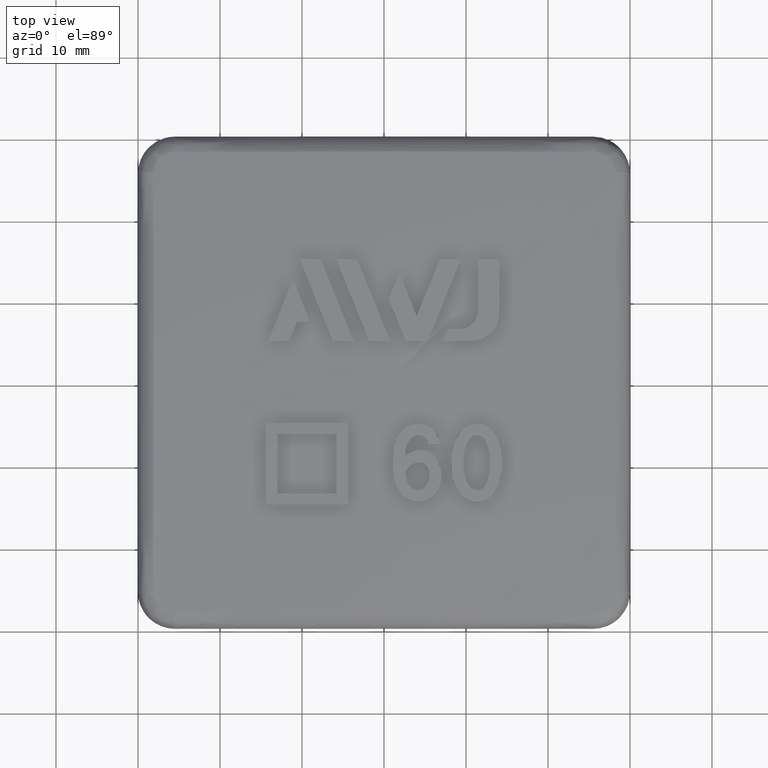
[diagram: clean part render]
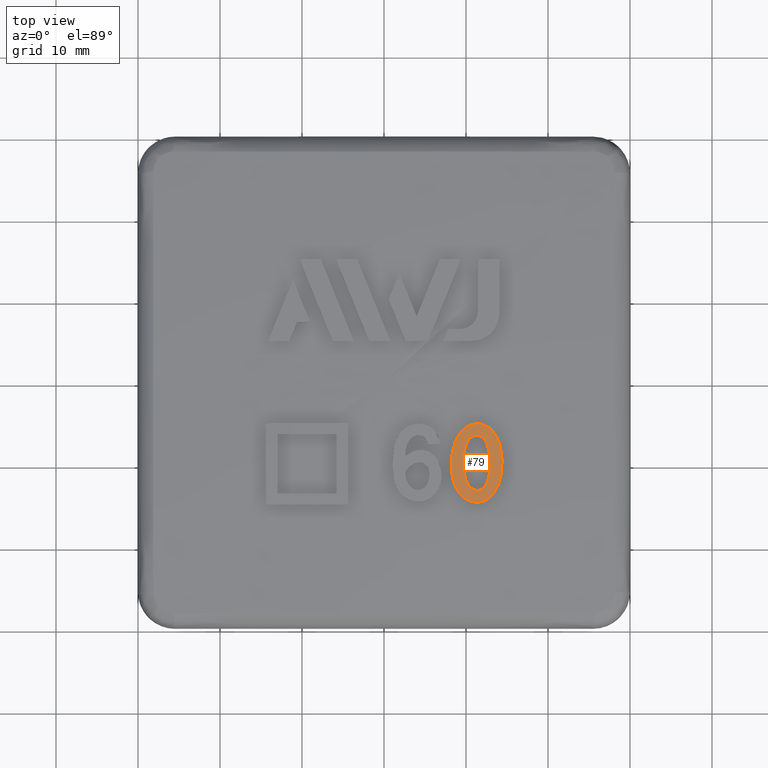
[diagram: same view with one face highlighted and labeled with its STEP entity id]
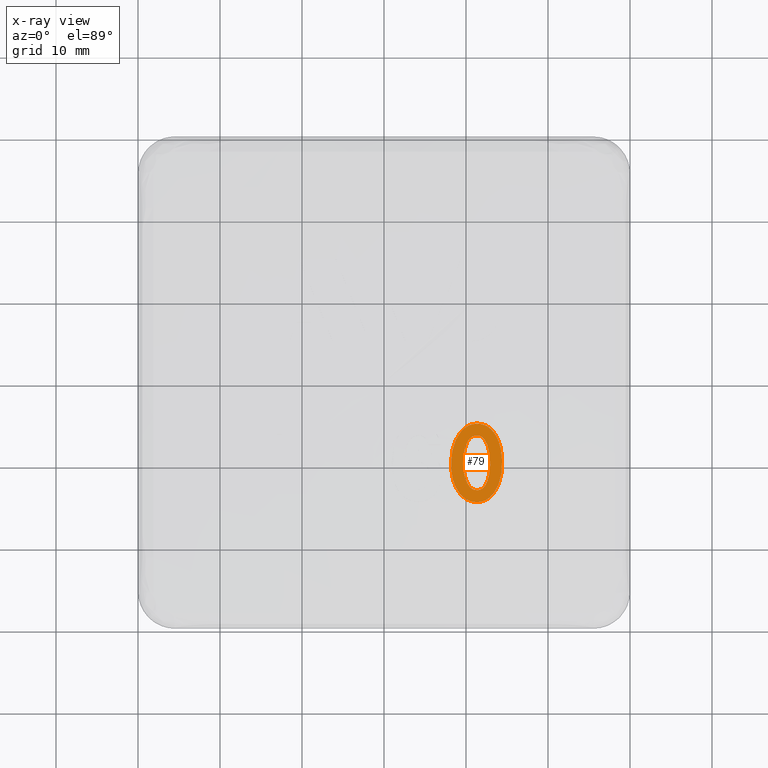
[diagram: x-ray of the same camera — body ghosted, the highlighted face saturated]
A machine part, top view. The second image highlights one B-rep face of the part: STEP entity #79.
The next image is the same camera in x-ray: the body ghosted, the highlighted face saturated — about 0% of this face is hidden behind the body in this view.
In plain terms, the highlighted face is a freeform B-spline surface patch.
Its self-contained STEP definition (entity closure, byte-faithful):
#79 = ADVANCED_FACE( '', ( #368, #369 ), #370, .T. );
#368 = FACE_OUTER_BOUND( '', #975, .T. );
#369 = FACE_BOUND( '', #976, .T. );
#370 = ( B_SPLINE_SURFACE( 3, 3, ( ( #978, #979, #980, #981 ), ( #982, #983, #984, #985 ), ( #986, #987, #988, #989 ), ( #990, #991, #992, #993 ) ), .UNSPECIFIED., .F., .F., .F. )B_SPLINE_SURFACE_WITH_KNOTS( ( 4, 4 ), ( 4, 4 ), ( 0.591101138315050, 1.17247002851752 ), ( 1.52448612272266, 1.54462714128179 ), .UNSPECIFIED. )RATIONAL_B_SPLINE_SURFACE( ( ( 1.00000000000000, 0.972031954984282, 0.972031954984282, 1.00000000000000 ), ( 0.999966195233311, 0.971999095670829, 0.971999095670829, 0.999966195233311 ), ( 0.999966195233311, 0.971999095670829, 0.971999095670829, 0.999966195233311 ), ( 1.00000000000000, 0.972031954984282, 0.972031954984282, 1.00000000000000 ) ) )BOUNDED_SURFACE(  )REPRESENTATION_ITEM( '' )GEOMETRIC_REPRESENTATION_ITEM(  )SURFACE(  ) );
#975 = EDGE_LOOP( '', ( #3679 ) );
#976 = EDGE_LOOP( '', ( #3680 ) );
#978 = CARTESIAN_POINT( '', ( 6.17741690337177, -9.20420489254490, 27.3633296025788 ) );
#979 = CARTESIAN_POINT( '', ( 7.98668456355546, -7.98991199519802, 27.3633296025788 ) );
#980 = CARTESIAN_POINT( '', ( 9.37202361755281, -6.30801056758600, 27.3633296025788 ) );
#981 = CARTESIAN_POINT( '', ( 10.2171983902911, -4.29961909422719, 27.3633296025788 ) );
#982 = CARTESIAN_POINT( '', ( 7.67534646140181, -11.4360844600681, 27.2929720584861 ) );
#983 = CARTESIAN_POINT( '', ( 9.92333398604823, -9.92734402073176, 27.2929720584861 ) );
#984 = CARTESIAN_POINT( '', ( 11.6445966711256, -7.83760710111371, 27.2929720584861 ) );
#985 = CARTESIAN_POINT( '', ( 12.6947134598537, -5.34221126993057, 27.2929720584861 ) );
#986 = CARTESIAN_POINT( '', ( 9.17280522032807, -13.6672625480761, 27.1955495063416 ) );
#987 = CARTESIAN_POINT( '', ( 11.8593747198296, -11.8641671115820, 27.1955495063416 ) );
#988 = CARTESIAN_POINT( '', ( 13.9164554552249, -9.36672288261053, 27.1955495063416 ) );
#989 = CARTESIAN_POINT( '', ( 15.1714498466884, -6.38447575902192, 27.1955495063416 ) );
#990 = CARTESIAN_POINT( '', ( 10.6696413164186, -15.8975128832047, 27.0710718261853 ) );
#991 = CARTESIAN_POINT( '', ( 13.7946104226836, -13.8001848461907, 27.0710718261853 ) );
#992 = CARTESIAN_POINT( '', ( 16.1873695708820, -10.8952028378698, 27.0710718261853 ) );
#993 = CARTESIAN_POINT( '', ( 17.6471563743082, -7.42630686097760, 27.0710718261853 ) );
#3679 = ORIENTED_EDGE( '', *, *, #5967, .F. );
#3680 = ORIENTED_EDGE( '', *, *, #5968, .F. );
#5967 = EDGE_CURVE( '', #6727, #6727, #6728, .T. );
#5968 = EDGE_CURVE( '', #6729, #6729, #6730, .T. );
#6727 = VERTEX_POINT( '', #8174 );
#6728 = B_SPLINE_CURVE_WITH_KNOTS( '', 3, ( #8175, #8176, #8177, #8178, #8179, #8180, #8181, #8182, #8183, #8184, #8185, #8186, #8187, #8188, #8189, #8190, #8191, #8192, #8193, #8194, #8195, #8196, #8197, #8198, #8199, #8200, #8201, #8202, #8203, #8204, #8205, #8206, #8207, #8208, #8209, #8210, #8211, #8212, #8213, #8214, #8215, #8216, #8217, #8218, #8219, #8220, #8221, #8222, #8223, #8224, #8225, #8226, #8227, #8228, #8229, #8230, #8231, #8232, #8233, #8234, #8235, #8236, #8237, #8238, #8239, #8240, #8241, #8242 ), .UNSPECIFIED., .T., .F., ( 2, 2, 2, 2, 2, 2, 2, 2, 2, 2, 2, 2, 2, 2, 2, 2, 2, 2, 2, 2, 2, 2, 2, 2, 2, 2, 2, 2, 2, 2, 2, 2, 2, 2, 2, 2 ), ( -0.000789168950976997, 0.000000000000000, 0.000789168950976986, 0.00157833790195397, 0.00315667580390795, 0.00473501370586193, 0.00552418265683892, 0.00631335160781591, 0.00710252055879290, 0.00789168950976989, 0.00828627398525839, 0.00868085846074688, 0.00907544293623538, 0.00947002741172388, 0.00986461188721237, 0.0102591963627009, 0.0106537808381894, 0.0110483653136779, 0.0118375342646549, 0.0126267032156318, 0.0134158721666088, 0.0142050411175858, 0.0149942100685628, 0.0157833790195398, 0.0165725479705168, 0.0173617169214938, 0.0189400548234478, 0.0197292237744248, 0.0205183927254018, 0.0213075616763788, 0.0220967306273558, 0.0228858995783328, 0.0236750685293097, 0.0244642374802867, 0.0252534064312637, 0.0260425753822407 ), .UNSPECIFIED. );
#6729 = VERTEX_POINT( '', #8243 );
#6730 = B_SPLINE_CURVE_WITH_KNOTS( '', 3, ( #8244, #8245, #8246, #8247, #8248, #8249, #8250, #8251, #8252, #8253, #8254, #8255, #8256, #8257, #8258, #8259, #8260, #8261, #8262, #8263, #8264, #8265, #8266, #8267, #8268, #8269, #8270, #8271, #8272, #8273, #8274, #8275, #8276, #8277, #8278, #8279, #8280, #8281, #8282, #8283, #8284, #8285, #8286, #8287, #8288, #8289, #8290, #8291, #8292, #8293, #8294, #8295, #8296, #8297, #8298, #8299 ), .UNSPECIFIED., .T., .F., ( 2, 2, 2, 2, 2, 2, 2, 2, 2, 2, 2, 2, 2, 2, 2, 2, 2, 2, 2, 2, 2, 2, 2, 2, 2, 2, 2, 2, 2, 2 ), ( -0.00101978745975306, 0.000000000000000, 0.000509893729876527, 0.00101978745975305, 0.00152968118962958, 0.00178462805456785, 0.00203957491950611, 0.00254946864938263, 0.00305936237925915, 0.00356925610913567, 0.00407914983901219, 0.00458904356888872, 0.00509893729876524, 0.00611872475851829, 0.00713851221827134, 0.00815829967802439, 0.00866819340790091, 0.00917808713777743, 0.00968798086765396, 0.00994292773259222, 0.0101978745975305, 0.0107077683274070, 0.0112176620572835, 0.0117275557871601, 0.0122374495170366, 0.0132572369767897, 0.0142770244365427, 0.0152968118962958, 0.0163165993560489, 0.0168264930859254 ), .UNSPECIFIED. );
#8174 = CARTESIAN_POINT( '', ( 9.16956598600635, -13.5025803890433, 27.1919716097016 ) );
#8175 = CARTESIAN_POINT( '', ( 9.33093123744101, -13.7135964631894, 27.1815557784461 ) );
#8176 = CARTESIAN_POINT( '', ( 9.00820073457169, -13.2915643148972, 27.2023874409572 ) );
#8177 = CARTESIAN_POINT( '', ( 8.87124618456355, -13.0669518412908, 27.2124442283603 ) );
#8178 = CARTESIAN_POINT( '', ( 8.63907824257331, -12.5944750142586, 27.2318818381657 ) );
#8179 = CARTESIAN_POINT( '', ( 8.54373542602478, -12.3451796153504, 27.2413023805142 ) );
#8180 = CARTESIAN_POINT( '', ( 8.31757788940890, -11.5909097378672, 27.2677471354817 ) );
#8181 = CARTESIAN_POINT( '', ( 8.24088684536792, -11.0722354005504, 27.2833150674435 ) );
#8182 = CARTESIAN_POINT( '', ( 8.18060531498801, -10.0182375242448, 27.3110036864471 ) );
#8183 = CARTESIAN_POINT( '', ( 8.19141374631636, -9.49562042147948, 27.3229120095233 ) );
#8184 = CARTESIAN_POINT( '', ( 8.28017799779883, -8.71946552640877, 27.3377158344370 ) );
#8185 = CARTESIAN_POINT( '', ( 8.32251266971146, -8.46211271468851, 27.3421254701217 ) );
#8186 = CARTESIAN_POINT( '', ( 8.43836780275365, -7.95074996309415, 27.3497664807043 ) );
#8187 = CARTESIAN_POINT( '', ( 8.51263240583354, -7.69483605594284, 27.3530158082017 ) );
#8188 = CARTESIAN_POINT( '', ( 8.69613779227573, -7.19791809189472, 27.3580323969863 ) );
#8189 = CARTESIAN_POINT( '', ( 8.80492323188525, -6.95735443619297, 27.3598059270949 ) );
#8190 = CARTESIAN_POINT( '', ( 9.06053163156369, -6.49385941638459, 27.3617762644541 ) );
#8191 = CARTESIAN_POINT( '', ( 9.20694932038716, -6.26978927973652, 27.3619943281056 ) );
#8192 = CARTESIAN_POINT( '', ( 9.45843133211270, -5.96482760676059, 27.3607954547017 ) );
#8193 = CARTESIAN_POINT( '', ( 9.54782889428043, -5.86796244162670, 27.3601425482621 ) );
#8194 = CARTESIAN_POINT( '', ( 9.74019836583308, -5.68590186837594, 27.3582437779395 ) );
#8195 = CARTESIAN_POINT( '', ( 9.84395830129147, -5.60030145163254, 27.3569839930035 ) );
#8196 = CARTESIAN_POINT( '', ( 10.0608768556380, -5.44834909143199, 27.3538636427745 ) );
#8197 = CARTESIAN_POINT( '', ( 10.1745529362458, -5.38135773816179, 27.3520008421654 ) );
#8198 = CARTESIAN_POINT( '', ( 10.4132168480474, -5.26685684525536, 27.3476280094492 ) );
#8199 = CARTESIAN_POINT( '', ( 10.5393452701444, -5.21917943041342, 27.3450904476314 ) );
#8200 = CARTESIAN_POINT( '', ( 10.7943373212477, -5.14712085123082, 27.3395285164084 ) );
#8201 = CARTESIAN_POINT( '', ( 10.9239016447607, -5.12218414119215, 27.3364950868241 ) );
#8202 = CARTESIAN_POINT( '', ( 11.1868146925594, -5.09260853315447, 27.3299541668534 ) );
#8203 = CARTESIAN_POINT( '', ( 11.3210751504862, -5.08808762185610, 27.3264198159170 ) );
#8204 = CARTESIAN_POINT( '', ( 11.5863072028931, -5.09704794439794, 27.3190892862059 ) );
#8205 = CARTESIAN_POINT( '', ( 11.7177448290933, -5.11067602923284, 27.3152801093886 ) );
#8206 = CARTESIAN_POINT( '', ( 11.9779239847278, -5.15886638661028, 27.3073516102718 ) );
#8207 = CARTESIAN_POINT( '', ( 12.1079517367409, -5.19398261024671, 27.3031875206682 ) );
#8208 = CARTESIAN_POINT( '', ( 12.4815360146835, -5.33084250027635, 27.2905809158734 ) );
#8209 = CARTESIAN_POINT( '', ( 12.7102662423919, -5.46396715574676, 27.2819864454146 ) );
#8210 = CARTESIAN_POINT( '', ( 13.1226767573594, -5.80256926634850, 27.2646895243785 ) );
#8211 = CARTESIAN_POINT( '', ( 13.2978064761692, -5.99953994372376, 27.2563672500871 ) );
#8212 = CARTESIAN_POINT( '', ( 13.6048859119271, -6.43192245500801, 27.2400283379837 ) );
#8213 = CARTESIAN_POINT( '', ( 13.7360448618202, -6.66388975466220, 27.2320819373486 ) );
#8214 = CARTESIAN_POINT( '', ( 13.9559383201746, -7.14126020430579, 27.2168614060785 ) );
#8215 = CARTESIAN_POINT( '', ( 14.0457999326903, -7.38869874359634, 27.2095201430677 ) );
#8216 = CARTESIAN_POINT( '', ( 14.1926393596677, -7.89790375991508, 27.1951766141463 ) );
#8217 = CARTESIAN_POINT( '', ( 14.2487005718656, -8.15680695853426, 27.1882557476235 ) );
#8218 = CARTESIAN_POINT( '', ( 14.3330091177613, -8.67494208244469, 27.1748562553668 ) );
#8219 = CARTESIAN_POINT( '', ( 14.3615322436970, -8.93531962960689, 27.1683468145684 ) );
#8220 = CARTESIAN_POINT( '', ( 14.3971877148223, -9.45812780278444, 27.1555217797765 ) );
#8221 = CARTESIAN_POINT( '', ( 14.4049041738343, -9.72050201752851, 27.1491869919305 ) );
#8222 = CARTESIAN_POINT( '', ( 14.4003103989847, -10.2471716230076, 27.1366598551037 ) );
#8223 = CARTESIAN_POINT( '', ( 14.3872812093851, -10.5121277079430, 27.1304735467866 ) );
#8224 = CARTESIAN_POINT( '', ( 14.3095409120732, -11.2969881553863, 27.1127492626466 ) );
#8225 = CARTESIAN_POINT( '', ( 14.2075540142452, -11.8109303109926, 27.1019171423446 ) );
#8226 = CARTESIAN_POINT( '', ( 13.9390954968897, -12.5604537017390, 27.0887105888007 ) );
#8227 = CARTESIAN_POINT( '', ( 13.8316474303801, -12.8017548976684, 27.0849159402643 ) );
#8228 = CARTESIAN_POINT( '', ( 13.5775662831320, -13.2625734448538, 27.0788106984700 ) );
#8229 = CARTESIAN_POINT( '', ( 13.4303924343370, -13.4852435478816, 27.0764144385116 ) );
#8230 = CARTESIAN_POINT( '', ( 13.0924678983351, -13.8922167686418, 27.0737775052400 ) );
#8231 = CARTESIAN_POINT( '', ( 12.9015371060621, -14.0759599088969, 27.0735658074387 ) );
#8232 = CARTESIAN_POINT( '', ( 12.4633656813941, -14.3787104178309, 27.0765903769584 ) );
#8233 = CARTESIAN_POINT( '', ( 12.2227773126048, -14.4918051368140, 27.0798261637834 ) );
#8234 = CARTESIAN_POINT( '', ( 11.7080821261694, -14.6272844712524, 27.0899528838344 ) );
#8235 = CARTESIAN_POINT( '', ( 11.4428400927631, -14.6469887078806, 27.0966807823333 ) );
#8236 = CARTESIAN_POINT( '', ( 10.9126680544781, -14.6152751300960, 27.1121267834661 ) );
#8237 = CARTESIAN_POINT( '', ( 10.6522521080984, -14.5623157120853, 27.1207778768684 ) );
#8238 = CARTESIAN_POINT( '', ( 10.1556928269671, -14.3722682508827, 27.1398884453895 ) );
#8239 = CARTESIAN_POINT( '', ( 9.92895164515182, -14.2394385223710, 27.1499669713397 ) );
#8240 = CARTESIAN_POINT( '', ( 9.51326227206724, -13.9074363382118, 27.1709709065797 ) );
#8241 = CARTESIAN_POINT( '', ( 9.33093123744101, -13.7135964631894, 27.1815557784461 ) );
#8242 = CARTESIAN_POINT( '', ( 9.00820073457169, -13.2915643148972, 27.2023874409572 ) );
#8243 = CARTESIAN_POINT( '', ( 9.99112215909090, -11.9545454545455, 27.2204177071943 ) );
#8244 = CARTESIAN_POINT( '', ( 9.87086935192962, -11.6338713021153, 27.2325093208046 ) );
#8245 = CARTESIAN_POINT( '', ( 10.0512485626715, -12.1148825307605, 27.2143719003892 ) );
#8246 = CARTESIAN_POINT( '', ( 10.1208513785081, -12.2702061667692, 27.2081335500449 ) );
#8247 = CARTESIAN_POINT( '', ( 10.2899305494417, -12.5650545595456, 27.1951802683576 ) );
#8248 = CARTESIAN_POINT( '', ( 10.3910573635174, -12.7064282355696, 27.1883661586996 ) );
#8249 = CARTESIAN_POINT( '', ( 10.6325550254591, -12.9469873178740, 27.1748252344476 ) );
#8250 = CARTESIAN_POINT( '', ( 10.7764443067530, -13.0472384855013, 27.1679750398801 ) );
#8251 = CARTESIAN_POINT( '', ( 11.0125779151487, -13.1420507596133, 27.1587556874101 ) );
#8252 = CARTESIAN_POINT( '', ( 11.0962977028885, -13.1652233335471, 27.1557896566048 ) );
#8253 = CARTESIAN_POINT( '', ( 11.2653719012773, -13.1932881318824, 27.1503390325576 ) );
#8254 = CARTESIAN_POINT( '', ( 11.3504477977988, -13.1994172227291, 27.1478234931339 ) );
#8255 = CARTESIAN_POINT( '', ( 11.6077509544700, -13.1873708081724, 27.1411081865873 ) );
#8256 = CARTESIAN_POINT( '', ( 11.7775515116591, -13.1347444772849, 27.1379878430015 ) );
#8257 = CARTESIAN_POINT( '', ( 12.0689250216973, -12.9540233792393, 27.1352926073939 ) );
#8258 = CARTESIAN_POINT( '', ( 12.1919460462086, -12.8289310475356, 27.1355826493288 ) );
#8259 = CARTESIAN_POINT( '', ( 12.3954439626564, -12.5552469689013, 27.1379282985234 ) );
#8260 = CARTESIAN_POINT( '', ( 12.4797418279667, -12.4035348449247, 27.1399670256063 ) );
#8261 = CARTESIAN_POINT( '', ( 12.6195234518821, -12.0931763283409, 27.1449065000063 ) );
#8262 = CARTESIAN_POINT( '', ( 12.6756354407284, -11.9328922294721, 27.1478396218621 ) );
#8263 = CARTESIAN_POINT( '', ( 12.7692421359539, -11.6054253866273, 27.1542623753829 ) );
#8264 = CARTESIAN_POINT( '', ( 12.8066548579906, -11.4377584523167, 27.1577665872100 ) );
#8265 = CARTESIAN_POINT( '', ( 12.8668760629090, -11.1030045681840, 27.1649972648873 ) );
#8266 = CARTESIAN_POINT( '', ( 12.8898934753096, -10.9351454317780, 27.1687397354512 ) );
#8267 = CARTESIAN_POINT( '', ( 12.9434153166884, -10.4305104036732, 27.1801640625758 ) );
#8268 = CARTESIAN_POINT( '', ( 12.9605117923745, -10.0928204656021, 27.1879737371777 ) );
#8269 = CARTESIAN_POINT( '', ( 12.9570380998546, -9.41487361487614, 27.2039886018267 ) );
#8270 = CARTESIAN_POINT( '', ( 12.9347732773044, -9.07284413713282, 27.2122821217714 ) );
#8271 = CARTESIAN_POINT( '', ( 12.8343514709373, -8.40032016440007, 27.2294991500065 ) );
#8272 = CARTESIAN_POINT( '', ( 12.7551924607975, -8.06575057567786, 27.2385373585665 ) );
#8273 = CARTESIAN_POINT( '', ( 12.5834635113927, -7.58730385293155, 27.2526215955227 ) );
#8274 = CARTESIAN_POINT( '', ( 12.5177454288736, -7.43153651079396, 27.2573986773469 ) );
#8275 = CARTESIAN_POINT( '', ( 12.3574555769313, -7.13265386557857, 27.2673794628663 ) );
#8276 = CARTESIAN_POINT( '', ( 12.2612624380022, -6.98704479486264, 27.2726711008533 ) );
#8277 = CARTESIAN_POINT( '', ( 12.0253812711302, -6.73853820469987, 27.2835921814102 ) );
#8278 = CARTESIAN_POINT( '', ( 11.8831028131060, -6.63521781358199, 27.2893041207422 ) );
#8279 = CARTESIAN_POINT( '', ( 11.6378520462077, -6.54824518321093, 27.2975256135539 ) );
#8280 = CARTESIAN_POINT( '', ( 11.5533164294120, -6.53279149708121, 27.3001038047946 ) );
#8281 = CARTESIAN_POINT( '', ( 11.3823142378546, -6.51535385082903, 27.3050490024084 ) );
#8282 = CARTESIAN_POINT( '', ( 11.2956426899613, -6.51314620445781, 27.3074244764640 ) );
#8283 = CARTESIAN_POINT( '', ( 11.0397687760467, -6.53147715104732, 27.3139708872071 ) );
#8284 = CARTESIAN_POINT( '', ( 10.8702883220796, -6.57929067127869, 27.3176425031892 ) );
#8285 = CARTESIAN_POINT( '', ( 10.5729247464600, -6.75059895193242, 27.3225093809881 ) );
#8286 = CARTESIAN_POINT( '', ( 10.4457631665665, -6.87255056877376, 27.3237112339709 ) );
#8287 = CARTESIAN_POINT( '', ( 10.2408438182904, -7.14839702971699, 27.3241526994431 ) );
#8288 = CARTESIAN_POINT( '', ( 10.1621531275261, -7.29976223619090, 27.3234614967287 ) );
#8289 = CARTESIAN_POINT( '', ( 10.0208117848357, -7.61156322476961, 27.3213257434883 ) );
#8290 = CARTESIAN_POINT( '', ( 9.96182374476692, -7.77253572207964, 27.3197823300586 ) );
#8291 = CARTESIAN_POINT( '', ( 9.81411938619434, -8.25965724420313, 27.3140702735507 ) );
#8292 = CARTESIAN_POINT( '', ( 9.75255575648618, -8.59329590945258, 27.3088137433722 ) );
#8293 = CARTESIAN_POINT( '', ( 9.67550106238390, -9.27166783440256, 27.2961548976646 ) );
#8294 = CARTESIAN_POINT( '', ( 9.65926233054054, -9.61096515635043, 27.2888841713806 ) );
#8295 = CARTESIAN_POINT( '', ( 9.66334676887845, -10.2878500800502, 27.2726997084348 ) );
#8296 = CARTESIAN_POINT( '', ( 9.68582993705898, -10.6257323266244, 27.2637309170354 ) );
#8297 = CARTESIAN_POINT( '', ( 9.78952912018659, -11.2998954076943, 27.2436095533143 ) );
#8298 = CARTESIAN_POINT( '', ( 9.87086935192962, -11.6338713021153, 27.2325093208046 ) );
#8299 = CARTESIAN_POINT( '', ( 10.0512485626715, -12.1148825307605, 27.2143719003892 ) );